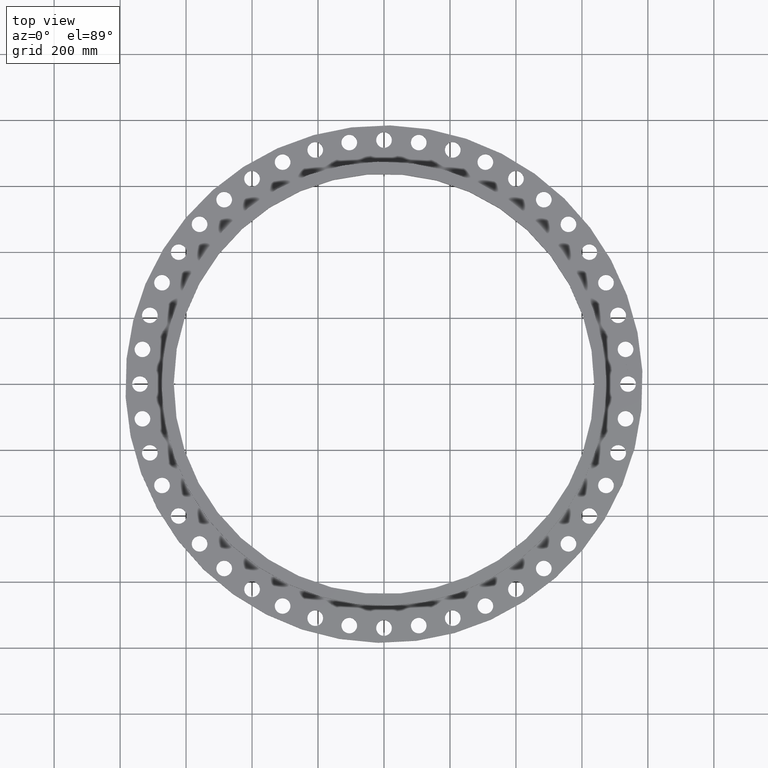
[diagram: clean part render]
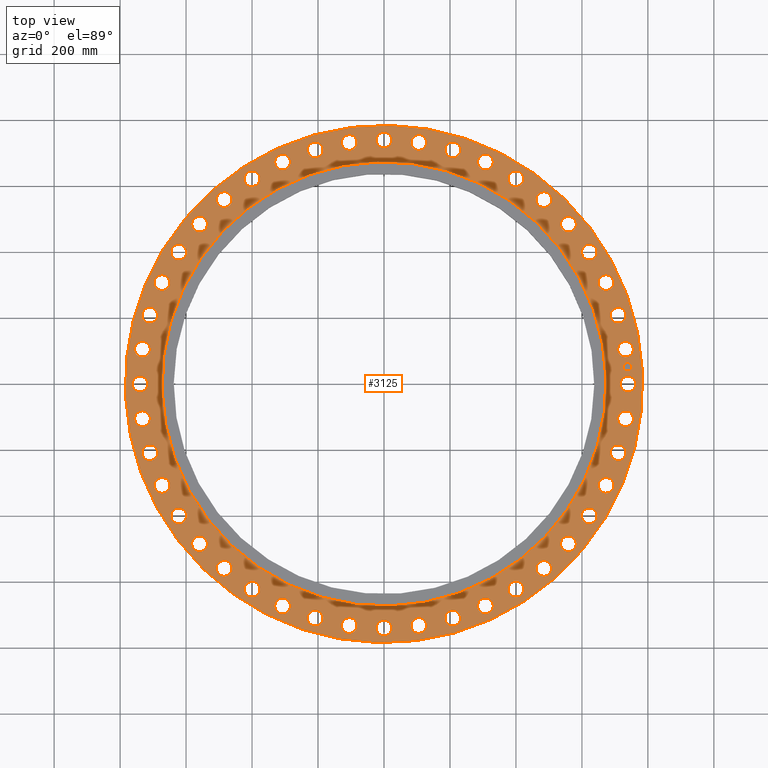
[diagram: same view with one face highlighted and labeled with its STEP entity id]
A machine part, top view. The second image highlights one B-rep face of the part: STEP entity #3125.
In plain terms, the highlighted planar face has unit normal (0, 0, 1).
Its self-contained STEP definition (entity closure, byte-faithful):
#65=AXIS2_PLACEMENT_3D('Circle Axis2P3D',#63,#64,$) ;
#82=AXIS2_PLACEMENT_3D('Circle Axis2P3D',#80,#81,$) ;
#108=AXIS2_PLACEMENT_3D('Circle Axis2P3D',#106,#107,$) ;
#134=AXIS2_PLACEMENT_3D('Circle Axis2P3D',#132,#133,$) ;
#255=AXIS2_PLACEMENT_3D('Circle Axis2P3D',#253,#254,$) ;
#267=AXIS2_PLACEMENT_3D('Circle Axis2P3D',#265,#266,$) ;
#1090=AXIS2_PLACEMENT_3D('Circle Axis2P3D',#1088,#1089,$) ;
#1102=AXIS2_PLACEMENT_3D('Circle Axis2P3D',#1100,#1101,$) ;
#1133=AXIS2_PLACEMENT_3D('Circle Axis2P3D',#1131,#1132,$) ;
#1145=AXIS2_PLACEMENT_3D('Circle Axis2P3D',#1143,#1144,$) ;
#1176=AXIS2_PLACEMENT_3D('Circle Axis2P3D',#1174,#1175,$) ;
#1188=AXIS2_PLACEMENT_3D('Circle Axis2P3D',#1186,#1187,$) ;
#1219=AXIS2_PLACEMENT_3D('Circle Axis2P3D',#1217,#1218,$) ;
#1231=AXIS2_PLACEMENT_3D('Circle Axis2P3D',#1229,#1230,$) ;
#1262=AXIS2_PLACEMENT_3D('Circle Axis2P3D',#1260,#1261,$) ;
#1274=AXIS2_PLACEMENT_3D('Circle Axis2P3D',#1272,#1273,$) ;
#1305=AXIS2_PLACEMENT_3D('Circle Axis2P3D',#1303,#1304,$) ;
#1317=AXIS2_PLACEMENT_3D('Circle Axis2P3D',#1315,#1316,$) ;
#1348=AXIS2_PLACEMENT_3D('Circle Axis2P3D',#1346,#1347,$) ;
#1360=AXIS2_PLACEMENT_3D('Circle Axis2P3D',#1358,#1359,$) ;
#1391=AXIS2_PLACEMENT_3D('Circle Axis2P3D',#1389,#1390,$) ;
#1403=AXIS2_PLACEMENT_3D('Circle Axis2P3D',#1401,#1402,$) ;
#1434=AXIS2_PLACEMENT_3D('Circle Axis2P3D',#1432,#1433,$) ;
#1446=AXIS2_PLACEMENT_3D('Circle Axis2P3D',#1444,#1445,$) ;
#1477=AXIS2_PLACEMENT_3D('Circle Axis2P3D',#1475,#1476,$) ;
#1489=AXIS2_PLACEMENT_3D('Circle Axis2P3D',#1487,#1488,$) ;
#1520=AXIS2_PLACEMENT_3D('Circle Axis2P3D',#1518,#1519,$) ;
#1532=AXIS2_PLACEMENT_3D('Circle Axis2P3D',#1530,#1531,$) ;
#1563=AXIS2_PLACEMENT_3D('Circle Axis2P3D',#1561,#1562,$) ;
#1575=AXIS2_PLACEMENT_3D('Circle Axis2P3D',#1573,#1574,$) ;
#1606=AXIS2_PLACEMENT_3D('Circle Axis2P3D',#1604,#1605,$) ;
#1618=AXIS2_PLACEMENT_3D('Circle Axis2P3D',#1616,#1617,$) ;
#1649=AXIS2_PLACEMENT_3D('Circle Axis2P3D',#1647,#1648,$) ;
#1661=AXIS2_PLACEMENT_3D('Circle Axis2P3D',#1659,#1660,$) ;
#1692=AXIS2_PLACEMENT_3D('Circle Axis2P3D',#1690,#1691,$) ;
#1704=AXIS2_PLACEMENT_3D('Circle Axis2P3D',#1702,#1703,$) ;
#1735=AXIS2_PLACEMENT_3D('Circle Axis2P3D',#1733,#1734,$) ;
#1747=AXIS2_PLACEMENT_3D('Circle Axis2P3D',#1745,#1746,$) ;
#1778=AXIS2_PLACEMENT_3D('Circle Axis2P3D',#1776,#1777,$) ;
#1790=AXIS2_PLACEMENT_3D('Circle Axis2P3D',#1788,#1789,$) ;
#1821=AXIS2_PLACEMENT_3D('Circle Axis2P3D',#1819,#1820,$) ;
#1833=AXIS2_PLACEMENT_3D('Circle Axis2P3D',#1831,#1832,$) ;
#1864=AXIS2_PLACEMENT_3D('Circle Axis2P3D',#1862,#1863,$) ;
#1876=AXIS2_PLACEMENT_3D('Circle Axis2P3D',#1874,#1875,$) ;
#1907=AXIS2_PLACEMENT_3D('Circle Axis2P3D',#1905,#1906,$) ;
#1919=AXIS2_PLACEMENT_3D('Circle Axis2P3D',#1917,#1918,$) ;
#1950=AXIS2_PLACEMENT_3D('Circle Axis2P3D',#1948,#1949,$) ;
#1962=AXIS2_PLACEMENT_3D('Circle Axis2P3D',#1960,#1961,$) ;
#1993=AXIS2_PLACEMENT_3D('Circle Axis2P3D',#1991,#1992,$) ;
#2005=AXIS2_PLACEMENT_3D('Circle Axis2P3D',#2003,#2004,$) ;
#2036=AXIS2_PLACEMENT_3D('Circle Axis2P3D',#2034,#2035,$) ;
#2048=AXIS2_PLACEMENT_3D('Circle Axis2P3D',#2046,#2047,$) ;
#2079=AXIS2_PLACEMENT_3D('Circle Axis2P3D',#2077,#2078,$) ;
#2091=AXIS2_PLACEMENT_3D('Circle Axis2P3D',#2089,#2090,$) ;
#2122=AXIS2_PLACEMENT_3D('Circle Axis2P3D',#2120,#2121,$) ;
#2134=AXIS2_PLACEMENT_3D('Circle Axis2P3D',#2132,#2133,$) ;
#2165=AXIS2_PLACEMENT_3D('Circle Axis2P3D',#2163,#2164,$) ;
#2177=AXIS2_PLACEMENT_3D('Circle Axis2P3D',#2175,#2176,$) ;
#2208=AXIS2_PLACEMENT_3D('Circle Axis2P3D',#2206,#2207,$) ;
#2220=AXIS2_PLACEMENT_3D('Circle Axis2P3D',#2218,#2219,$) ;
#2251=AXIS2_PLACEMENT_3D('Circle Axis2P3D',#2249,#2250,$) ;
#2263=AXIS2_PLACEMENT_3D('Circle Axis2P3D',#2261,#2262,$) ;
#2294=AXIS2_PLACEMENT_3D('Circle Axis2P3D',#2292,#2293,$) ;
#2306=AXIS2_PLACEMENT_3D('Circle Axis2P3D',#2304,#2305,$) ;
#2337=AXIS2_PLACEMENT_3D('Circle Axis2P3D',#2335,#2336,$) ;
#2349=AXIS2_PLACEMENT_3D('Circle Axis2P3D',#2347,#2348,$) ;
#2380=AXIS2_PLACEMENT_3D('Circle Axis2P3D',#2378,#2379,$) ;
#2392=AXIS2_PLACEMENT_3D('Circle Axis2P3D',#2390,#2391,$) ;
#2423=AXIS2_PLACEMENT_3D('Circle Axis2P3D',#2421,#2422,$) ;
#2435=AXIS2_PLACEMENT_3D('Circle Axis2P3D',#2433,#2434,$) ;
#2466=AXIS2_PLACEMENT_3D('Circle Axis2P3D',#2464,#2465,$) ;
#2478=AXIS2_PLACEMENT_3D('Circle Axis2P3D',#2476,#2477,$) ;
#2509=AXIS2_PLACEMENT_3D('Circle Axis2P3D',#2507,#2508,$) ;
#2521=AXIS2_PLACEMENT_3D('Circle Axis2P3D',#2519,#2520,$) ;
#2552=AXIS2_PLACEMENT_3D('Circle Axis2P3D',#2550,#2551,$) ;
#2564=AXIS2_PLACEMENT_3D('Circle Axis2P3D',#2562,#2563,$) ;
#2595=AXIS2_PLACEMENT_3D('Circle Axis2P3D',#2593,#2594,$) ;
#2607=AXIS2_PLACEMENT_3D('Circle Axis2P3D',#2605,#2606,$) ;
#2638=AXIS2_PLACEMENT_3D('Circle Axis2P3D',#2636,#2637,$) ;
#2650=AXIS2_PLACEMENT_3D('Circle Axis2P3D',#2648,#2649,$) ;
#2681=AXIS2_PLACEMENT_3D('Circle Axis2P3D',#2679,#2680,$) ;
#2693=AXIS2_PLACEMENT_3D('Circle Axis2P3D',#2691,#2692,$) ;
#2724=AXIS2_PLACEMENT_3D('Circle Axis2P3D',#2722,#2723,$) ;
#2736=AXIS2_PLACEMENT_3D('Circle Axis2P3D',#2734,#2735,$) ;
#2767=AXIS2_PLACEMENT_3D('Circle Axis2P3D',#2765,#2766,$) ;
#2779=AXIS2_PLACEMENT_3D('Circle Axis2P3D',#2777,#2778,$) ;
#2810=AXIS2_PLACEMENT_3D('Circle Axis2P3D',#2808,#2809,$) ;
#2822=AXIS2_PLACEMENT_3D('Circle Axis2P3D',#2820,#2821,$) ;
#2853=AXIS2_PLACEMENT_3D('Circle Axis2P3D',#2851,#2852,$) ;
#2865=AXIS2_PLACEMENT_3D('Circle Axis2P3D',#2863,#2864,$) ;
#2896=AXIS2_PLACEMENT_3D('Circle Axis2P3D',#2894,#2895,$) ;
#2908=AXIS2_PLACEMENT_3D('Circle Axis2P3D',#2906,#2907,$) ;
#2921=AXIS2_PLACEMENT_3D('Plane Axis2P3D',#2918,#2919,#2920) ;
#3109=AXIS2_PLACEMENT_3D('Circle Axis2P3D',#3107,#3108,$) ;
#3118=AXIS2_PLACEMENT_3D('Circle Axis2P3D',#3116,#3117,$) ;
#46=CARTESIAN_POINT('Vertex',(28.3022663483,0.449461442443,1.37500000001)) ;
#60=CARTESIAN_POINT('Vertex',(29.9477336519,-0.449461442443,1.37500000001)) ;
#63=CARTESIAN_POINT('Axis2P3D Location',(29.1250000001,0.,1.37500000001)) ;
#80=CARTESIAN_POINT('Axis2P3D Location',(29.1250000001,0.,1.37500000001)) ;
#103=CARTESIAN_POINT('Vertex',(27.0953615985,14.8022635045,1.37500000001)) ;
#106=CARTESIAN_POINT('Axis2P3D Location',(0.,0.,1.37500000001)) ;
#110=CARTESIAN_POINT('Vertex',(-27.0953615985,-14.8022635045,1.37500000001)) ;
#132=CARTESIAN_POINT('Axis2P3D Location',(0.,0.,1.37500000001)) ;
#243=CARTESIAN_POINT('Vertex',(23.2559378902,12.7047767731,1.37500000001)) ;
#250=CARTESIAN_POINT('Vertex',(-23.2559378902,-12.7047767731,1.37500000001)) ;
#253=CARTESIAN_POINT('Axis2P3D Location',(0.,0.,1.37500000001)) ;
#265=CARTESIAN_POINT('Axis2P3D Location',(0.,0.,1.37500000001)) ;
#1078=CARTESIAN_POINT('Vertex',(27.9502250529,4.47271903116,1.37500000001)) ;
#1085=CARTESIAN_POINT('Vertex',(29.7068739369,3.81712029829,1.37500000001)) ;
#1088=CARTESIAN_POINT('Axis2P3D Location',(28.8285494949,4.14491966473,1.37500000001)) ;
#1100=CARTESIAN_POINT('Axis2P3D Location',(28.8285494949,4.14491966473,1.37500000001)) ;
#1121=CARTESIAN_POINT('Vertex',(27.0291977772,8.40492495866,1.37500000001)) ;
#1128=CARTESIAN_POINT('Vertex',(28.861267936,8.00599647742,1.37500000001)) ;
#1131=CARTESIAN_POINT('Axis2P3D Location',(27.9452328566,8.20546071804,1.37500000001)) ;
#1143=CARTESIAN_POINT('Axis2P3D Location',(27.9452328566,8.20546071804,1.37500000001)) ;
#1164=CARTESIAN_POINT('Vertex',(25.5579339805,12.1660308518,1.37500000001)) ;
#1171=CARTESIAN_POINT('Vertex',(27.4281297491,12.0318936557,1.37500000001)) ;
#1174=CARTESIAN_POINT('Axis2P3D Location',(26.4930318648,12.0989622537,1.37500000001)) ;
#1186=CARTESIAN_POINT('Axis2P3D Location',(26.4930318648,12.0989622537,1.37500000001)) ;
#1207=CARTESIAN_POINT('Vertex',(23.566384351,15.6794714407,1.37500000001)) ;
#1214=CARTESIAN_POINT('Vertex',(25.4366339366,15.8128561762,1.37500000001)) ;
#1217=CARTESIAN_POINT('Axis2P3D Location',(24.5015091438,15.7461638085,1.37500000001)) ;
#1229=CARTESIAN_POINT('Axis2P3D Location',(24.5015091438,15.7461638085,1.37500000001)) ;
#1250=CARTESIAN_POINT('Vertex',(21.0950910959,18.873723207,1.37500000001)) ;
#1257=CARTESIAN_POINT('Vertex',(22.9273216104,19.2719145455,1.37500000001)) ;
#1260=CARTESIAN_POINT('Axis2P3D Location',(22.0112063532,19.0728188762,1.37500000001)) ;
#1272=CARTESIAN_POINT('Axis2P3D Location',(22.0112063532,19.0728188762,1.37500000001)) ;
#1293=CARTESIAN_POINT('Vertex',(18.1943626194,21.6837603961,1.37500000001)) ;
#1300=CARTESIAN_POINT('Vertex',(19.9512751331,22.3386523102,1.37500000001)) ;
#1303=CARTESIAN_POINT('Axis2P3D Location',(19.0728188762,22.0112063532,1.37500000001)) ;
#1315=CARTESIAN_POINT('Axis2P3D Location',(19.0728188762,22.0112063532,1.37500000001)) ;
#1336=CARTESIAN_POINT('Vertex',(14.9232493881,24.0523787543,1.37500000001)) ;
#1343=CARTESIAN_POINT('Vertex',(16.5690782288,24.9506395333,1.37500000001)) ;
#1346=CARTESIAN_POINT('Axis2P3D Location',(15.7461638085,24.5015091438,1.37500000001)) ;
#1358=CARTESIAN_POINT('Axis2P3D Location',(15.7461638085,24.5015091438,1.37500000001)) ;
#1379=CARTESIAN_POINT('Vertex',(11.3483418344,25.9313600425,1.37500000001)) ;
#1386=CARTESIAN_POINT('Vertex',(12.8495826731,27.0547036872,1.37500000001)) ;
#1389=CARTESIAN_POINT('Axis2P3D Location',(12.0989622537,26.4930318648,1.37500000001)) ;
#1401=CARTESIAN_POINT('Axis2P3D Location',(12.0989622537,26.4930318648,1.37500000001)) ;
#1422=CARTESIAN_POINT('Vertex',(7.54241476679,27.28245362,1.37500000001)) ;
#1429=CARTESIAN_POINT('Vertex',(8.86850666929,28.6080120933,1.37500000001)) ;
#1432=CARTESIAN_POINT('Axis2P3D Location',(8.20546071804,27.9452328566,1.37500000001)) ;
#1444=CARTESIAN_POINT('Axis2P3D Location',(8.20546071804,27.9452328566,1.37500000001)) ;
#1465=CARTESIAN_POINT('Vertex',(3.5829458851,28.0781551179,1.37500000001)) ;
#1472=CARTESIAN_POINT('Vertex',(4.70689344435,29.5789438719,1.37500000001)) ;
#1475=CARTESIAN_POINT('Axis2P3D Location',(4.14491966473,28.8285494949,1.37500000001)) ;
#1487=CARTESIAN_POINT('Axis2P3D Location',(4.14491966473,28.8285494949,1.37500000001)) ;
#1508=CARTESIAN_POINT('Vertex',(-0.449461442443,28.3022663483,1.37500000001)) ;
#1515=CARTESIAN_POINT('Vertex',(0.449461442443,29.9477336519,1.37500000001)) ;
#1518=CARTESIAN_POINT('Axis2P3D Location',(-2.69246785155E-015,29.1250000001,1.37500000001)) ;
#1530=CARTESIAN_POINT('Axis2P3D Location',(-2.69246785155E-015,29.1250000001,1.37500000001)) ;
#1551=CARTESIAN_POINT('Vertex',(-4.47271903116,27.9502250529,1.37500000001)) ;
#1558=CARTESIAN_POINT('Vertex',(-3.81712029829,29.7068739369,1.37500000001)) ;
#1561=CARTESIAN_POINT('Axis2P3D Location',(-4.14491966473,28.8285494949,1.37500000001)) ;
#1573=CARTESIAN_POINT('Axis2P3D Location',(-4.14491966473,28.8285494949,1.37500000001)) ;
#1594=CARTESIAN_POINT('Vertex',(-8.40492495866,27.0291977772,1.37500000001)) ;
#1601=CARTESIAN_POINT('Vertex',(-8.00599647742,28.861267936,1.37500000001)) ;
#1604=CARTESIAN_POINT('Axis2P3D Location',(-8.20546071804,27.9452328566,1.37500000001)) ;
#1616=CARTESIAN_POINT('Axis2P3D Location',(-8.20546071804,27.9452328566,1.37500000001)) ;
#1637=CARTESIAN_POINT('Vertex',(-12.1660308518,25.5579339805,1.37500000001)) ;
#1644=CARTESIAN_POINT('Vertex',(-12.0318936557,27.4281297491,1.37500000001)) ;
#1647=CARTESIAN_POINT('Axis2P3D Location',(-12.0989622537,26.4930318648,1.37500000001)) ;
#1659=CARTESIAN_POINT('Axis2P3D Location',(-12.0989622537,26.4930318648,1.37500000001)) ;
#1680=CARTESIAN_POINT('Vertex',(-15.6794714407,23.566384351,1.37500000001)) ;
#1687=CARTESIAN_POINT('Vertex',(-15.8128561762,25.4366339366,1.37500000001)) ;
#1690=CARTESIAN_POINT('Axis2P3D Location',(-15.7461638085,24.5015091438,1.37500000001)) ;
#1702=CARTESIAN_POINT('Axis2P3D Location',(-15.7461638085,24.5015091438,1.37500000001)) ;
#1723=CARTESIAN_POINT('Vertex',(-18.873723207,21.0950910959,1.37500000001)) ;
#1730=CARTESIAN_POINT('Vertex',(-19.2719145455,22.9273216104,1.37500000001)) ;
#1733=CARTESIAN_POINT('Axis2P3D Location',(-19.0728188762,22.0112063532,1.37500000001)) ;
#1745=CARTESIAN_POINT('Axis2P3D Location',(-19.0728188762,22.0112063532,1.37500000001)) ;
#1766=CARTESIAN_POINT('Vertex',(-21.6837603961,18.1943626194,1.37500000001)) ;
#1773=CARTESIAN_POINT('Vertex',(-22.3386523102,19.9512751331,1.37500000001)) ;
#1776=CARTESIAN_POINT('Axis2P3D Location',(-22.0112063532,19.0728188762,1.37500000001)) ;
#1788=CARTESIAN_POINT('Axis2P3D Location',(-22.0112063532,19.0728188762,1.37500000001)) ;
#1809=CARTESIAN_POINT('Vertex',(-24.0523787543,14.9232493881,1.37500000001)) ;
#1816=CARTESIAN_POINT('Vertex',(-24.9506395333,16.5690782288,1.37500000001)) ;
#1819=CARTESIAN_POINT('Axis2P3D Location',(-24.5015091438,15.7461638085,1.37500000001)) ;
#1831=CARTESIAN_POINT('Axis2P3D Location',(-24.5015091438,15.7461638085,1.37500000001)) ;
#1852=CARTESIAN_POINT('Vertex',(-25.9313600425,11.3483418344,1.37500000001)) ;
#1859=CARTESIAN_POINT('Vertex',(-27.0547036872,12.8495826731,1.37500000001)) ;
#1862=CARTESIAN_POINT('Axis2P3D Location',(-26.4930318648,12.0989622537,1.37500000001)) ;
#1874=CARTESIAN_POINT('Axis2P3D Location',(-26.4930318648,12.0989622537,1.37500000001)) ;
#1895=CARTESIAN_POINT('Vertex',(-27.28245362,7.54241476679,1.37500000001)) ;
#1902=CARTESIAN_POINT('Vertex',(-28.6080120933,8.86850666929,1.37500000001)) ;
#1905=CARTESIAN_POINT('Axis2P3D Location',(-27.9452328566,8.20546071804,1.37500000001)) ;
#1917=CARTESIAN_POINT('Axis2P3D Location',(-27.9452328566,8.20546071804,1.37500000001)) ;
#1938=CARTESIAN_POINT('Vertex',(-28.0781551179,3.5829458851,1.37500000001)) ;
#1945=CARTESIAN_POINT('Vertex',(-29.5789438719,4.70689344435,1.37500000001)) ;
#1948=CARTESIAN_POINT('Axis2P3D Location',(-28.8285494949,4.14491966473,1.37500000001)) ;
#1960=CARTESIAN_POINT('Axis2P3D Location',(-28.8285494949,4.14491966473,1.37500000001)) ;
#1981=CARTESIAN_POINT('Vertex',(-28.3022663483,-0.449461442443,1.37500000001)) ;
#1988=CARTESIAN_POINT('Vertex',(-29.9477336519,0.449461442443,1.37500000001)) ;
#1991=CARTESIAN_POINT('Axis2P3D Location',(-29.1250000001,3.56678380253E-015,1.37500000001)) ;
#2003=CARTESIAN_POINT('Axis2P3D Location',(-29.1250000001,3.56678380253E-015,1.37500000001)) ;
#2024=CARTESIAN_POINT('Vertex',(-27.9502250529,-4.47271903116,1.37500000001)) ;
#2031=CARTESIAN_POINT('Vertex',(-29.7068739369,-3.81712029829,1.37500000001)) ;
#2034=CARTESIAN_POINT('Axis2P3D Location',(-28.8285494949,-4.14491966473,1.37500000001)) ;
#2046=CARTESIAN_POINT('Axis2P3D Location',(-28.8285494949,-4.14491966473,1.37500000001)) ;
#2067=CARTESIAN_POINT('Vertex',(-27.0291977772,-8.40492495866,1.37500000001)) ;
#2074=CARTESIAN_POINT('Vertex',(-28.861267936,-8.00599647742,1.37500000001)) ;
#2077=CARTESIAN_POINT('Axis2P3D Location',(-27.9452328566,-8.20546071804,1.37500000001)) ;
#2089=CARTESIAN_POINT('Axis2P3D Location',(-27.9452328566,-8.20546071804,1.37500000001)) ;
#2110=CARTESIAN_POINT('Vertex',(-25.5579339805,-12.1660308518,1.37500000001)) ;
#2117=CARTESIAN_POINT('Vertex',(-27.4281297491,-12.0318936557,1.37500000001)) ;
#2120=CARTESIAN_POINT('Axis2P3D Location',(-26.4930318648,-12.0989622537,1.37500000001)) ;
#2132=CARTESIAN_POINT('Axis2P3D Location',(-26.4930318648,-12.0989622537,1.37500000001)) ;
#2153=CARTESIAN_POINT('Vertex',(-23.566384351,-15.6794714407,1.37500000001)) ;
#2160=CARTESIAN_POINT('Vertex',(-25.4366339366,-15.8128561762,1.37500000001)) ;
#2163=CARTESIAN_POINT('Axis2P3D Location',(-24.5015091438,-15.7461638085,1.37500000001)) ;
#2175=CARTESIAN_POINT('Axis2P3D Location',(-24.5015091438,-15.7461638085,1.37500000001)) ;
#2196=CARTESIAN_POINT('Vertex',(-21.0950910959,-18.873723207,1.37500000001)) ;
#2203=CARTESIAN_POINT('Vertex',(-22.9273216104,-19.2719145455,1.37500000001)) ;
#2206=CARTESIAN_POINT('Axis2P3D Location',(-22.0112063532,-19.0728188762,1.37500000001)) ;
#2218=CARTESIAN_POINT('Axis2P3D Location',(-22.0112063532,-19.0728188762,1.37500000001)) ;
#2239=CARTESIAN_POINT('Vertex',(-18.1943626194,-21.6837603961,1.37500000001)) ;
#2246=CARTESIAN_POINT('Vertex',(-19.9512751331,-22.3386523102,1.37500000001)) ;
#2249=CARTESIAN_POINT('Axis2P3D Location',(-19.0728188762,-22.0112063532,1.37500000001)) ;
#2261=CARTESIAN_POINT('Axis2P3D Location',(-19.0728188762,-22.0112063532,1.37500000001)) ;
#2282=CARTESIAN_POINT('Vertex',(-14.9232493881,-24.0523787543,1.37500000001)) ;
#2289=CARTESIAN_POINT('Vertex',(-16.5690782288,-24.9506395333,1.37500000001)) ;
#2292=CARTESIAN_POINT('Axis2P3D Location',(-15.7461638085,-24.5015091438,1.37500000001)) ;
#2304=CARTESIAN_POINT('Axis2P3D Location',(-15.7461638085,-24.5015091438,1.37500000001)) ;
#2325=CARTESIAN_POINT('Vertex',(-11.3483418344,-25.9313600425,1.37500000001)) ;
#2332=CARTESIAN_POINT('Vertex',(-12.8495826731,-27.0547036872,1.37500000001)) ;
#2335=CARTESIAN_POINT('Axis2P3D Location',(-12.0989622537,-26.4930318648,1.37500000001)) ;
#2347=CARTESIAN_POINT('Axis2P3D Location',(-12.0989622537,-26.4930318648,1.37500000001)) ;
#2368=CARTESIAN_POINT('Vertex',(-7.54241476679,-27.28245362,1.37500000001)) ;
#2375=CARTESIAN_POINT('Vertex',(-8.86850666929,-28.6080120933,1.37500000001)) ;
#2378=CARTESIAN_POINT('Axis2P3D Location',(-8.20546071804,-27.9452328566,1.37500000001)) ;
#2390=CARTESIAN_POINT('Axis2P3D Location',(-8.20546071804,-27.9452328566,1.37500000001)) ;
#2411=CARTESIAN_POINT('Vertex',(-3.5829458851,-28.0781551179,1.37500000001)) ;
#2418=CARTESIAN_POINT('Vertex',(-4.70689344435,-29.5789438719,1.37500000001)) ;
#2421=CARTESIAN_POINT('Axis2P3D Location',(-4.14491966473,-28.8285494949,1.37500000001)) ;
#2433=CARTESIAN_POINT('Axis2P3D Location',(-4.14491966473,-28.8285494949,1.37500000001)) ;
#2454=CARTESIAN_POINT('Vertex',(0.449461442443,-28.3022663483,1.37500000001)) ;
#2461=CARTESIAN_POINT('Vertex',(-0.449461442443,-29.9477336519,1.37500000001)) ;
#2464=CARTESIAN_POINT('Axis2P3D Location',(-5.3501757038E-015,-29.1250000001,1.37500000001)) ;
#2476=CARTESIAN_POINT('Axis2P3D Location',(-5.3501757038E-015,-29.1250000001,1.37500000001)) ;
#2497=CARTESIAN_POINT('Vertex',(4.47271903116,-27.9502250529,1.37500000001)) ;
#2504=CARTESIAN_POINT('Vertex',(3.81712029829,-29.7068739369,1.37500000001)) ;
#2507=CARTESIAN_POINT('Axis2P3D Location',(4.14491966473,-28.8285494949,1.37500000001)) ;
#2519=CARTESIAN_POINT('Axis2P3D Location',(4.14491966473,-28.8285494949,1.37500000001)) ;
#2540=CARTESIAN_POINT('Vertex',(8.40492495866,-27.0291977772,1.37500000001)) ;
#2547=CARTESIAN_POINT('Vertex',(8.00599647742,-28.861267936,1.37500000001)) ;
#2550=CARTESIAN_POINT('Axis2P3D Location',(8.20546071804,-27.9452328566,1.37500000001)) ;
#2562=CARTESIAN_POINT('Axis2P3D Location',(8.20546071804,-27.9452328566,1.37500000001)) ;
#2583=CARTESIAN_POINT('Vertex',(12.1660308518,-25.5579339805,1.37500000001)) ;
#2590=CARTESIAN_POINT('Vertex',(12.0318936557,-27.4281297491,1.37500000001)) ;
#2593=CARTESIAN_POINT('Axis2P3D Location',(12.0989622537,-26.4930318648,1.37500000001)) ;
#2605=CARTESIAN_POINT('Axis2P3D Location',(12.0989622537,-26.4930318648,1.37500000001)) ;
#2626=CARTESIAN_POINT('Vertex',(15.6794714407,-23.566384351,1.37500000001)) ;
#2633=CARTESIAN_POINT('Vertex',(15.8128561762,-25.4366339366,1.37500000001)) ;
#2636=CARTESIAN_POINT('Axis2P3D Location',(15.7461638085,-24.5015091438,1.37500000001)) ;
#2648=CARTESIAN_POINT('Axis2P3D Location',(15.7461638085,-24.5015091438,1.37500000001)) ;
#2669=CARTESIAN_POINT('Vertex',(18.873723207,-21.0950910959,1.37500000001)) ;
#2676=CARTESIAN_POINT('Vertex',(19.2719145455,-22.9273216104,1.37500000001)) ;
#2679=CARTESIAN_POINT('Axis2P3D Location',(19.0728188762,-22.0112063532,1.37500000001)) ;
#2691=CARTESIAN_POINT('Axis2P3D Location',(19.0728188762,-22.0112063532,1.37500000001)) ;
#2712=CARTESIAN_POINT('Vertex',(21.6837603961,-18.1943626194,1.37500000001)) ;
#2719=CARTESIAN_POINT('Vertex',(22.3386523102,-19.9512751331,1.37500000001)) ;
#2722=CARTESIAN_POINT('Axis2P3D Location',(22.0112063532,-19.0728188762,1.37500000001)) ;
#2734=CARTESIAN_POINT('Axis2P3D Location',(22.0112063532,-19.0728188762,1.37500000001)) ;
#2755=CARTESIAN_POINT('Vertex',(24.0523787543,-14.9232493881,1.37500000001)) ;
#2762=CARTESIAN_POINT('Vertex',(24.9506395333,-16.5690782288,1.37500000001)) ;
#2765=CARTESIAN_POINT('Axis2P3D Location',(24.5015091438,-15.7461638085,1.37500000001)) ;
#2777=CARTESIAN_POINT('Axis2P3D Location',(24.5015091438,-15.7461638085,1.37500000001)) ;
#2798=CARTESIAN_POINT('Vertex',(25.9313600425,-11.3483418344,1.37500000001)) ;
#2805=CARTESIAN_POINT('Vertex',(27.0547036872,-12.8495826731,1.37500000001)) ;
#2808=CARTESIAN_POINT('Axis2P3D Location',(26.4930318648,-12.0989622537,1.37500000001)) ;
#2820=CARTESIAN_POINT('Axis2P3D Location',(26.4930318648,-12.0989622537,1.37500000001)) ;
#2841=CARTESIAN_POINT('Vertex',(27.28245362,-7.54241476679,1.37500000001)) ;
#2848=CARTESIAN_POINT('Vertex',(28.6080120933,-8.86850666929,1.37500000001)) ;
#2851=CARTESIAN_POINT('Axis2P3D Location',(27.9452328566,-8.20546071804,1.37500000001)) ;
#2863=CARTESIAN_POINT('Axis2P3D Location',(27.9452328566,-8.20546071804,1.37500000001)) ;
#2884=CARTESIAN_POINT('Vertex',(28.0781551179,-3.5829458851,1.37500000001)) ;
#2891=CARTESIAN_POINT('Vertex',(29.5789438719,-4.70689344435,1.37500000001)) ;
#2894=CARTESIAN_POINT('Axis2P3D Location',(28.8285494949,-4.14491966473,1.37500000001)) ;
#2906=CARTESIAN_POINT('Axis2P3D Location',(28.8285494949,-4.14491966473,1.37500000001)) ;
#2918=CARTESIAN_POINT('Axis2P3D Location',(30.8750000001,0.,1.37500000001)) ;
#3107=CARTESIAN_POINT('Axis2P3D Location',(29.0507928381,2.07775371069,1.37500000001)) ;
#3111=CARTESIAN_POINT('Vertex',(29.0151232469,2.57647976301,1.37500000001)) ;
#3113=CARTESIAN_POINT('Vertex',(29.0864624294,1.57902765837,1.37500000001)) ;
#3116=CARTESIAN_POINT('Axis2P3D Location',(29.0507928381,2.07775371069,1.37500000001)) ;
#64=DIRECTION('Axis2P3D Direction',(0.,-0.,-0.0393700787402)) ;
#81=DIRECTION('Axis2P3D Direction',(0.,-0.,-0.0393700787402)) ;
#107=DIRECTION('Axis2P3D Direction',(0.,0.,0.0393700787402)) ;
#133=DIRECTION('Axis2P3D Direction',(0.,0.,0.0393700787402)) ;
#254=DIRECTION('Axis2P3D Direction',(0.,0.,0.0393700787402)) ;
#266=DIRECTION('Axis2P3D Direction',(0.,0.,0.0393700787402)) ;
#1089=DIRECTION('Axis2P3D Direction',(0.,0.,-0.0393700787402)) ;
#1101=DIRECTION('Axis2P3D Direction',(0.,0.,-0.0393700787402)) ;
#1132=DIRECTION('Axis2P3D Direction',(0.,0.,-0.0393700787402)) ;
#1144=DIRECTION('Axis2P3D Direction',(0.,0.,-0.0393700787402)) ;
#1175=DIRECTION('Axis2P3D Direction',(0.,0.,-0.0393700787402)) ;
#1187=DIRECTION('Axis2P3D Direction',(0.,0.,-0.0393700787402)) ;
#1218=DIRECTION('Axis2P3D Direction',(0.,0.,-0.0393700787402)) ;
#1230=DIRECTION('Axis2P3D Direction',(0.,0.,-0.0393700787402)) ;
#1261=DIRECTION('Axis2P3D Direction',(0.,0.,-0.0393700787402)) ;
#1273=DIRECTION('Axis2P3D Direction',(0.,0.,-0.0393700787402)) ;
#1304=DIRECTION('Axis2P3D Direction',(0.,0.,-0.0393700787402)) ;
#1316=DIRECTION('Axis2P3D Direction',(0.,0.,-0.0393700787402)) ;
#1347=DIRECTION('Axis2P3D Direction',(0.,0.,-0.0393700787402)) ;
#1359=DIRECTION('Axis2P3D Direction',(0.,0.,-0.0393700787402)) ;
#1390=DIRECTION('Axis2P3D Direction',(0.,0.,-0.0393700787402)) ;
#1402=DIRECTION('Axis2P3D Direction',(0.,0.,-0.0393700787402)) ;
#1433=DIRECTION('Axis2P3D Direction',(0.,0.,-0.0393700787402)) ;
#1445=DIRECTION('Axis2P3D Direction',(0.,0.,-0.0393700787402)) ;
#1476=DIRECTION('Axis2P3D Direction',(0.,0.,-0.0393700787402)) ;
#1488=DIRECTION('Axis2P3D Direction',(0.,0.,-0.0393700787402)) ;
#1519=DIRECTION('Axis2P3D Direction',(0.,0.,-0.0393700787402)) ;
#1531=DIRECTION('Axis2P3D Direction',(0.,0.,-0.0393700787402)) ;
#1562=DIRECTION('Axis2P3D Direction',(0.,0.,-0.0393700787402)) ;
#1574=DIRECTION('Axis2P3D Direction',(0.,0.,-0.0393700787402)) ;
#1605=DIRECTION('Axis2P3D Direction',(0.,0.,-0.0393700787402)) ;
#1617=DIRECTION('Axis2P3D Direction',(0.,0.,-0.0393700787402)) ;
#1648=DIRECTION('Axis2P3D Direction',(0.,0.,-0.0393700787402)) ;
#1660=DIRECTION('Axis2P3D Direction',(0.,0.,-0.0393700787402)) ;
#1691=DIRECTION('Axis2P3D Direction',(0.,0.,-0.0393700787402)) ;
#1703=DIRECTION('Axis2P3D Direction',(0.,0.,-0.0393700787402)) ;
#1734=DIRECTION('Axis2P3D Direction',(0.,0.,-0.0393700787402)) ;
#1746=DIRECTION('Axis2P3D Direction',(0.,0.,-0.0393700787402)) ;
#1777=DIRECTION('Axis2P3D Direction',(0.,0.,-0.0393700787402)) ;
#1789=DIRECTION('Axis2P3D Direction',(0.,0.,-0.0393700787402)) ;
#1820=DIRECTION('Axis2P3D Direction',(0.,0.,-0.0393700787402)) ;
#1832=DIRECTION('Axis2P3D Direction',(0.,0.,-0.0393700787402)) ;
#1863=DIRECTION('Axis2P3D Direction',(0.,0.,-0.0393700787402)) ;
#1875=DIRECTION('Axis2P3D Direction',(0.,0.,-0.0393700787402)) ;
#1906=DIRECTION('Axis2P3D Direction',(0.,0.,-0.0393700787402)) ;
#1918=DIRECTION('Axis2P3D Direction',(0.,0.,-0.0393700787402)) ;
#1949=DIRECTION('Axis2P3D Direction',(0.,0.,-0.0393700787402)) ;
#1961=DIRECTION('Axis2P3D Direction',(0.,0.,-0.0393700787402)) ;
#1992=DIRECTION('Axis2P3D Direction',(0.,0.,-0.0393700787402)) ;
#2004=DIRECTION('Axis2P3D Direction',(0.,0.,-0.0393700787402)) ;
#2035=DIRECTION('Axis2P3D Direction',(-0.,0.,-0.0393700787402)) ;
#2047=DIRECTION('Axis2P3D Direction',(-0.,0.,-0.0393700787402)) ;
#2078=DIRECTION('Axis2P3D Direction',(-0.,0.,-0.0393700787402)) ;
#2090=DIRECTION('Axis2P3D Direction',(-0.,0.,-0.0393700787402)) ;
#2121=DIRECTION('Axis2P3D Direction',(-0.,0.,-0.0393700787402)) ;
#2133=DIRECTION('Axis2P3D Direction',(-0.,0.,-0.0393700787402)) ;
#2164=DIRECTION('Axis2P3D Direction',(-0.,0.,-0.0393700787402)) ;
#2176=DIRECTION('Axis2P3D Direction',(-0.,0.,-0.0393700787402)) ;
#2207=DIRECTION('Axis2P3D Direction',(-0.,0.,-0.0393700787402)) ;
#2219=DIRECTION('Axis2P3D Direction',(-0.,0.,-0.0393700787402)) ;
#2250=DIRECTION('Axis2P3D Direction',(-0.,0.,-0.0393700787402)) ;
#2262=DIRECTION('Axis2P3D Direction',(-0.,0.,-0.0393700787402)) ;
#2293=DIRECTION('Axis2P3D Direction',(-0.,0.,-0.0393700787402)) ;
#2305=DIRECTION('Axis2P3D Direction',(-0.,0.,-0.0393700787402)) ;
#2336=DIRECTION('Axis2P3D Direction',(-0.,0.,-0.0393700787402)) ;
#2348=DIRECTION('Axis2P3D Direction',(-0.,0.,-0.0393700787402)) ;
#2379=DIRECTION('Axis2P3D Direction',(-0.,0.,-0.0393700787402)) ;
#2391=DIRECTION('Axis2P3D Direction',(-0.,0.,-0.0393700787402)) ;
#2422=DIRECTION('Axis2P3D Direction',(-0.,0.,-0.0393700787402)) ;
#2434=DIRECTION('Axis2P3D Direction',(-0.,0.,-0.0393700787402)) ;
#2465=DIRECTION('Axis2P3D Direction',(-0.,0.,-0.0393700787402)) ;
#2477=DIRECTION('Axis2P3D Direction',(-0.,0.,-0.0393700787402)) ;
#2508=DIRECTION('Axis2P3D Direction',(0.,-0.,-0.0393700787402)) ;
#2520=DIRECTION('Axis2P3D Direction',(0.,-0.,-0.0393700787402)) ;
#2551=DIRECTION('Axis2P3D Direction',(0.,-0.,-0.0393700787402)) ;
#2563=DIRECTION('Axis2P3D Direction',(0.,-0.,-0.0393700787402)) ;
#2594=DIRECTION('Axis2P3D Direction',(0.,-0.,-0.0393700787402)) ;
#2606=DIRECTION('Axis2P3D Direction',(0.,-0.,-0.0393700787402)) ;
#2637=DIRECTION('Axis2P3D Direction',(0.,-0.,-0.0393700787402)) ;
#2649=DIRECTION('Axis2P3D Direction',(0.,-0.,-0.0393700787402)) ;
#2680=DIRECTION('Axis2P3D Direction',(0.,-0.,-0.0393700787402)) ;
#2692=DIRECTION('Axis2P3D Direction',(0.,-0.,-0.0393700787402)) ;
#2723=DIRECTION('Axis2P3D Direction',(0.,-0.,-0.0393700787402)) ;
#2735=DIRECTION('Axis2P3D Direction',(0.,-0.,-0.0393700787402)) ;
#2766=DIRECTION('Axis2P3D Direction',(0.,-0.,-0.0393700787402)) ;
#2778=DIRECTION('Axis2P3D Direction',(0.,-0.,-0.0393700787402)) ;
#2809=DIRECTION('Axis2P3D Direction',(0.,-0.,-0.0393700787402)) ;
#2821=DIRECTION('Axis2P3D Direction',(0.,-0.,-0.0393700787402)) ;
#2852=DIRECTION('Axis2P3D Direction',(0.,-0.,-0.0393700787402)) ;
#2864=DIRECTION('Axis2P3D Direction',(0.,-0.,-0.0393700787402)) ;
#2895=DIRECTION('Axis2P3D Direction',(0.,-0.,-0.0393700787402)) ;
#2907=DIRECTION('Axis2P3D Direction',(0.,-0.,-0.0393700787402)) ;
#2919=DIRECTION('Axis2P3D Direction',(0.,0.,0.0393700787402)) ;
#2920=DIRECTION('Axis2P3D XDirection',(0.0393700787402,0.,0.)) ;
#3108=DIRECTION('Axis2P3D Direction',(0.,0.,0.0393700787402)) ;
#3117=DIRECTION('Axis2P3D Direction',(0.,0.,0.0393700787402)) ;
#2924=ORIENTED_EDGE('',*,*,#112,.T.) ;
#2925=ORIENTED_EDGE('',*,*,#136,.T.) ;
#2928=ORIENTED_EDGE('',*,*,#84,.F.) ;
#2929=ORIENTED_EDGE('',*,*,#67,.F.) ;
#2932=ORIENTED_EDGE('',*,*,#269,.F.) ;
#2933=ORIENTED_EDGE('',*,*,#257,.F.) ;
#2936=ORIENTED_EDGE('',*,*,#1092,.F.) ;
#2937=ORIENTED_EDGE('',*,*,#1104,.F.) ;
#2940=ORIENTED_EDGE('',*,*,#1135,.F.) ;
#2941=ORIENTED_EDGE('',*,*,#1147,.F.) ;
#2944=ORIENTED_EDGE('',*,*,#1178,.F.) ;
#2945=ORIENTED_EDGE('',*,*,#1190,.F.) ;
#2948=ORIENTED_EDGE('',*,*,#1221,.F.) ;
#2949=ORIENTED_EDGE('',*,*,#1233,.F.) ;
#2952=ORIENTED_EDGE('',*,*,#1264,.F.) ;
#2953=ORIENTED_EDGE('',*,*,#1276,.F.) ;
#2956=ORIENTED_EDGE('',*,*,#1307,.F.) ;
#2957=ORIENTED_EDGE('',*,*,#1319,.F.) ;
#2960=ORIENTED_EDGE('',*,*,#1350,.F.) ;
#2961=ORIENTED_EDGE('',*,*,#1362,.F.) ;
#2964=ORIENTED_EDGE('',*,*,#1393,.F.) ;
#2965=ORIENTED_EDGE('',*,*,#1405,.F.) ;
#2968=ORIENTED_EDGE('',*,*,#1436,.F.) ;
#2969=ORIENTED_EDGE('',*,*,#1448,.F.) ;
#2972=ORIENTED_EDGE('',*,*,#1479,.F.) ;
#2973=ORIENTED_EDGE('',*,*,#1491,.F.) ;
#2976=ORIENTED_EDGE('',*,*,#1522,.F.) ;
#2977=ORIENTED_EDGE('',*,*,#1534,.F.) ;
#2980=ORIENTED_EDGE('',*,*,#1565,.F.) ;
#2981=ORIENTED_EDGE('',*,*,#1577,.F.) ;
#2984=ORIENTED_EDGE('',*,*,#1608,.F.) ;
#2985=ORIENTED_EDGE('',*,*,#1620,.F.) ;
#2988=ORIENTED_EDGE('',*,*,#1651,.F.) ;
#2989=ORIENTED_EDGE('',*,*,#1663,.F.) ;
#2992=ORIENTED_EDGE('',*,*,#1694,.F.) ;
#2993=ORIENTED_EDGE('',*,*,#1706,.F.) ;
#2996=ORIENTED_EDGE('',*,*,#1737,.F.) ;
#2997=ORIENTED_EDGE('',*,*,#1749,.F.) ;
#3000=ORIENTED_EDGE('',*,*,#1780,.F.) ;
#3001=ORIENTED_EDGE('',*,*,#1792,.F.) ;
#3004=ORIENTED_EDGE('',*,*,#1823,.F.) ;
#3005=ORIENTED_EDGE('',*,*,#1835,.F.) ;
#3008=ORIENTED_EDGE('',*,*,#1866,.F.) ;
#3009=ORIENTED_EDGE('',*,*,#1878,.F.) ;
#3012=ORIENTED_EDGE('',*,*,#1909,.F.) ;
#3013=ORIENTED_EDGE('',*,*,#1921,.F.) ;
#3016=ORIENTED_EDGE('',*,*,#1952,.F.) ;
#3017=ORIENTED_EDGE('',*,*,#1964,.F.) ;
#3020=ORIENTED_EDGE('',*,*,#1995,.F.) ;
#3021=ORIENTED_EDGE('',*,*,#2007,.F.) ;
#3024=ORIENTED_EDGE('',*,*,#2038,.F.) ;
#3025=ORIENTED_EDGE('',*,*,#2050,.F.) ;
#3028=ORIENTED_EDGE('',*,*,#2081,.F.) ;
#3029=ORIENTED_EDGE('',*,*,#2093,.F.) ;
#3032=ORIENTED_EDGE('',*,*,#2124,.F.) ;
#3033=ORIENTED_EDGE('',*,*,#2136,.F.) ;
#3036=ORIENTED_EDGE('',*,*,#2167,.F.) ;
#3037=ORIENTED_EDGE('',*,*,#2179,.F.) ;
#3040=ORIENTED_EDGE('',*,*,#2210,.F.) ;
#3041=ORIENTED_EDGE('',*,*,#2222,.F.) ;
#3044=ORIENTED_EDGE('',*,*,#2253,.F.) ;
#3045=ORIENTED_EDGE('',*,*,#2265,.F.) ;
#3048=ORIENTED_EDGE('',*,*,#2296,.F.) ;
#3049=ORIENTED_EDGE('',*,*,#2308,.F.) ;
#3052=ORIENTED_EDGE('',*,*,#2339,.F.) ;
#3053=ORIENTED_EDGE('',*,*,#2351,.F.) ;
#3056=ORIENTED_EDGE('',*,*,#2382,.F.) ;
#3057=ORIENTED_EDGE('',*,*,#2394,.F.) ;
#3060=ORIENTED_EDGE('',*,*,#2425,.F.) ;
#3061=ORIENTED_EDGE('',*,*,#2437,.F.) ;
#3064=ORIENTED_EDGE('',*,*,#2468,.F.) ;
#3065=ORIENTED_EDGE('',*,*,#2480,.F.) ;
#3068=ORIENTED_EDGE('',*,*,#2511,.F.) ;
#3069=ORIENTED_EDGE('',*,*,#2523,.F.) ;
#3072=ORIENTED_EDGE('',*,*,#2554,.F.) ;
#3073=ORIENTED_EDGE('',*,*,#2566,.F.) ;
#3076=ORIENTED_EDGE('',*,*,#2597,.F.) ;
#3077=ORIENTED_EDGE('',*,*,#2609,.F.) ;
#3080=ORIENTED_EDGE('',*,*,#2640,.F.) ;
#3081=ORIENTED_EDGE('',*,*,#2652,.F.) ;
#3084=ORIENTED_EDGE('',*,*,#2683,.F.) ;
#3085=ORIENTED_EDGE('',*,*,#2695,.F.) ;
#3088=ORIENTED_EDGE('',*,*,#2726,.F.) ;
#3089=ORIENTED_EDGE('',*,*,#2738,.F.) ;
#3092=ORIENTED_EDGE('',*,*,#2769,.F.) ;
#3093=ORIENTED_EDGE('',*,*,#2781,.F.) ;
#3096=ORIENTED_EDGE('',*,*,#2812,.F.) ;
#3097=ORIENTED_EDGE('',*,*,#2824,.F.) ;
#3100=ORIENTED_EDGE('',*,*,#2855,.F.) ;
#3101=ORIENTED_EDGE('',*,*,#2867,.F.) ;
#3104=ORIENTED_EDGE('',*,*,#2898,.F.) ;
#3105=ORIENTED_EDGE('',*,*,#2910,.F.) ;
#3122=ORIENTED_EDGE('',*,*,#3115,.F.) ;
#3123=ORIENTED_EDGE('',*,*,#3120,.F.) ;
#2930=FACE_BOUND('',#2927,.T.) ;
#2934=FACE_BOUND('',#2931,.T.) ;
#2938=FACE_BOUND('',#2935,.T.) ;
#2942=FACE_BOUND('',#2939,.T.) ;
#2946=FACE_BOUND('',#2943,.T.) ;
#2950=FACE_BOUND('',#2947,.T.) ;
#2954=FACE_BOUND('',#2951,.T.) ;
#2958=FACE_BOUND('',#2955,.T.) ;
#2962=FACE_BOUND('',#2959,.T.) ;
#2966=FACE_BOUND('',#2963,.T.) ;
#2970=FACE_BOUND('',#2967,.T.) ;
#2974=FACE_BOUND('',#2971,.T.) ;
#2978=FACE_BOUND('',#2975,.T.) ;
#2982=FACE_BOUND('',#2979,.T.) ;
#2986=FACE_BOUND('',#2983,.T.) ;
#2990=FACE_BOUND('',#2987,.T.) ;
#2994=FACE_BOUND('',#2991,.T.) ;
#2998=FACE_BOUND('',#2995,.T.) ;
#3002=FACE_BOUND('',#2999,.T.) ;
#3006=FACE_BOUND('',#3003,.T.) ;
#3010=FACE_BOUND('',#3007,.T.) ;
#3014=FACE_BOUND('',#3011,.T.) ;
#3018=FACE_BOUND('',#3015,.T.) ;
#3022=FACE_BOUND('',#3019,.T.) ;
#3026=FACE_BOUND('',#3023,.T.) ;
#3030=FACE_BOUND('',#3027,.T.) ;
#3034=FACE_BOUND('',#3031,.T.) ;
#3038=FACE_BOUND('',#3035,.T.) ;
#3042=FACE_BOUND('',#3039,.T.) ;
#3046=FACE_BOUND('',#3043,.T.) ;
#3050=FACE_BOUND('',#3047,.T.) ;
#3054=FACE_BOUND('',#3051,.T.) ;
#3058=FACE_BOUND('',#3055,.T.) ;
#3062=FACE_BOUND('',#3059,.T.) ;
#3066=FACE_BOUND('',#3063,.T.) ;
#3070=FACE_BOUND('',#3067,.T.) ;
#3074=FACE_BOUND('',#3071,.T.) ;
#3078=FACE_BOUND('',#3075,.T.) ;
#3082=FACE_BOUND('',#3079,.T.) ;
#3086=FACE_BOUND('',#3083,.T.) ;
#3090=FACE_BOUND('',#3087,.T.) ;
#3094=FACE_BOUND('',#3091,.T.) ;
#3098=FACE_BOUND('',#3095,.T.) ;
#3102=FACE_BOUND('',#3099,.T.) ;
#3106=FACE_BOUND('',#3103,.T.) ;
#3124=FACE_BOUND('',#3121,.T.) ;
#3125=ADVANCED_FACE('PartBody',(#2926,#2930,#2934,#2938,#2942,#2946,#2950,#2954,#2958,#2962,#2966,#2970,#2974,#2978,#2982,#2986,#2990,#2994,#2998,#3002,#3006,#3010,#3014,#3018,#3022,#3026,#3030,#3034,#3038,#3042,#3046,#3050,#3054,#3058,#3062,#3066,#3070,#3074,#3078,#3082,#3086,#3090,#3094,#3098,#3102,#3106,#3124),#2922,.T.) ;
#66=CIRCLE('generated circle',#65,0.937500000004) ;
#83=CIRCLE('generated circle',#82,0.937500000004) ;
#109=CIRCLE('generated circle',#108,30.8750000001) ;
#135=CIRCLE('generated circle',#134,30.8750000001) ;
#256=CIRCLE('generated circle',#255,26.5000000001) ;
#268=CIRCLE('generated circle',#267,26.5000000001) ;
#1091=CIRCLE('generated circle',#1090,0.937500000004) ;
#1103=CIRCLE('generated circle',#1102,0.937500000004) ;
#1134=CIRCLE('generated circle',#1133,0.937500000004) ;
#1146=CIRCLE('generated circle',#1145,0.937500000004) ;
#1177=CIRCLE('generated circle',#1176,0.937500000004) ;
#1189=CIRCLE('generated circle',#1188,0.937500000004) ;
#1220=CIRCLE('generated circle',#1219,0.937500000004) ;
#1232=CIRCLE('generated circle',#1231,0.937500000004) ;
#1263=CIRCLE('generated circle',#1262,0.937500000004) ;
#1275=CIRCLE('generated circle',#1274,0.937500000004) ;
#1306=CIRCLE('generated circle',#1305,0.937500000004) ;
#1318=CIRCLE('generated circle',#1317,0.937500000004) ;
#1349=CIRCLE('generated circle',#1348,0.937500000004) ;
#1361=CIRCLE('generated circle',#1360,0.937500000004) ;
#1392=CIRCLE('generated circle',#1391,0.937500000004) ;
#1404=CIRCLE('generated circle',#1403,0.937500000004) ;
#1435=CIRCLE('generated circle',#1434,0.937500000004) ;
#1447=CIRCLE('generated circle',#1446,0.937500000004) ;
#1478=CIRCLE('generated circle',#1477,0.937500000004) ;
#1490=CIRCLE('generated circle',#1489,0.937500000004) ;
#1521=CIRCLE('generated circle',#1520,0.937500000004) ;
#1533=CIRCLE('generated circle',#1532,0.937500000004) ;
#1564=CIRCLE('generated circle',#1563,0.937500000004) ;
#1576=CIRCLE('generated circle',#1575,0.937500000004) ;
#1607=CIRCLE('generated circle',#1606,0.937500000004) ;
#1619=CIRCLE('generated circle',#1618,0.937500000004) ;
#1650=CIRCLE('generated circle',#1649,0.937500000004) ;
#1662=CIRCLE('generated circle',#1661,0.937500000004) ;
#1693=CIRCLE('generated circle',#1692,0.937500000004) ;
#1705=CIRCLE('generated circle',#1704,0.937500000004) ;
#1736=CIRCLE('generated circle',#1735,0.937500000004) ;
#1748=CIRCLE('generated circle',#1747,0.937500000004) ;
#1779=CIRCLE('generated circle',#1778,0.937500000004) ;
#1791=CIRCLE('generated circle',#1790,0.937500000004) ;
#1822=CIRCLE('generated circle',#1821,0.937500000004) ;
#1834=CIRCLE('generated circle',#1833,0.937500000004) ;
#1865=CIRCLE('generated circle',#1864,0.937500000004) ;
#1877=CIRCLE('generated circle',#1876,0.937500000004) ;
#1908=CIRCLE('generated circle',#1907,0.937500000004) ;
#1920=CIRCLE('generated circle',#1919,0.937500000004) ;
#1951=CIRCLE('generated circle',#1950,0.937500000004) ;
#1963=CIRCLE('generated circle',#1962,0.937500000004) ;
#1994=CIRCLE('generated circle',#1993,0.937500000004) ;
#2006=CIRCLE('generated circle',#2005,0.937500000004) ;
#2037=CIRCLE('generated circle',#2036,0.937500000004) ;
#2049=CIRCLE('generated circle',#2048,0.937500000004) ;
#2080=CIRCLE('generated circle',#2079,0.937500000004) ;
#2092=CIRCLE('generated circle',#2091,0.937500000004) ;
#2123=CIRCLE('generated circle',#2122,0.937500000004) ;
#2135=CIRCLE('generated circle',#2134,0.937500000004) ;
#2166=CIRCLE('generated circle',#2165,0.937500000004) ;
#2178=CIRCLE('generated circle',#2177,0.937500000004) ;
#2209=CIRCLE('generated circle',#2208,0.937500000004) ;
#2221=CIRCLE('generated circle',#2220,0.937500000004) ;
#2252=CIRCLE('generated circle',#2251,0.937500000004) ;
#2264=CIRCLE('generated circle',#2263,0.937500000004) ;
#2295=CIRCLE('generated circle',#2294,0.937500000004) ;
#2307=CIRCLE('generated circle',#2306,0.937500000004) ;
#2338=CIRCLE('generated circle',#2337,0.937500000004) ;
#2350=CIRCLE('generated circle',#2349,0.937500000004) ;
#2381=CIRCLE('generated circle',#2380,0.937500000004) ;
#2393=CIRCLE('generated circle',#2392,0.937500000004) ;
#2424=CIRCLE('generated circle',#2423,0.937500000004) ;
#2436=CIRCLE('generated circle',#2435,0.937500000004) ;
#2467=CIRCLE('generated circle',#2466,0.937500000004) ;
#2479=CIRCLE('generated circle',#2478,0.937500000004) ;
#2510=CIRCLE('generated circle',#2509,0.937500000004) ;
#2522=CIRCLE('generated circle',#2521,0.937500000004) ;
#2553=CIRCLE('generated circle',#2552,0.937500000004) ;
#2565=CIRCLE('generated circle',#2564,0.937500000004) ;
#2596=CIRCLE('generated circle',#2595,0.937500000004) ;
#2608=CIRCLE('generated circle',#2607,0.937500000004) ;
#2639=CIRCLE('generated circle',#2638,0.937500000004) ;
#2651=CIRCLE('generated circle',#2650,0.937500000004) ;
#2682=CIRCLE('generated circle',#2681,0.937500000004) ;
#2694=CIRCLE('generated circle',#2693,0.937500000004) ;
#2725=CIRCLE('generated circle',#2724,0.937500000004) ;
#2737=CIRCLE('generated circle',#2736,0.937500000004) ;
#2768=CIRCLE('generated circle',#2767,0.937500000004) ;
#2780=CIRCLE('generated circle',#2779,0.937500000004) ;
#2811=CIRCLE('generated circle',#2810,0.937500000004) ;
#2823=CIRCLE('generated circle',#2822,0.937500000004) ;
#2854=CIRCLE('generated circle',#2853,0.937500000004) ;
#2866=CIRCLE('generated circle',#2865,0.937500000004) ;
#2897=CIRCLE('generated circle',#2896,0.937500000004) ;
#2909=CIRCLE('generated circle',#2908,0.937500000004) ;
#3110=CIRCLE('generated circle',#3109,0.499999995002) ;
#3119=CIRCLE('generated circle',#3118,0.499999995002) ;
#67=EDGE_CURVE('',#61,#47,#66,.F.) ;
#84=EDGE_CURVE('',#47,#61,#83,.F.) ;
#112=EDGE_CURVE('',#111,#104,#109,.T.) ;
#136=EDGE_CURVE('',#104,#111,#135,.T.) ;
#257=EDGE_CURVE('',#251,#244,#256,.T.) ;
#269=EDGE_CURVE('',#244,#251,#268,.T.) ;
#1092=EDGE_CURVE('',#1086,#1079,#1091,.F.) ;
#1104=EDGE_CURVE('',#1079,#1086,#1103,.F.) ;
#1135=EDGE_CURVE('',#1129,#1122,#1134,.F.) ;
#1147=EDGE_CURVE('',#1122,#1129,#1146,.F.) ;
#1178=EDGE_CURVE('',#1172,#1165,#1177,.F.) ;
#1190=EDGE_CURVE('',#1165,#1172,#1189,.F.) ;
#1221=EDGE_CURVE('',#1215,#1208,#1220,.F.) ;
#1233=EDGE_CURVE('',#1208,#1215,#1232,.F.) ;
#1264=EDGE_CURVE('',#1258,#1251,#1263,.F.) ;
#1276=EDGE_CURVE('',#1251,#1258,#1275,.F.) ;
#1307=EDGE_CURVE('',#1301,#1294,#1306,.F.) ;
#1319=EDGE_CURVE('',#1294,#1301,#1318,.F.) ;
#1350=EDGE_CURVE('',#1344,#1337,#1349,.F.) ;
#1362=EDGE_CURVE('',#1337,#1344,#1361,.F.) ;
#1393=EDGE_CURVE('',#1387,#1380,#1392,.F.) ;
#1405=EDGE_CURVE('',#1380,#1387,#1404,.F.) ;
#1436=EDGE_CURVE('',#1430,#1423,#1435,.F.) ;
#1448=EDGE_CURVE('',#1423,#1430,#1447,.F.) ;
#1479=EDGE_CURVE('',#1473,#1466,#1478,.F.) ;
#1491=EDGE_CURVE('',#1466,#1473,#1490,.F.) ;
#1522=EDGE_CURVE('',#1516,#1509,#1521,.F.) ;
#1534=EDGE_CURVE('',#1509,#1516,#1533,.F.) ;
#1565=EDGE_CURVE('',#1559,#1552,#1564,.F.) ;
#1577=EDGE_CURVE('',#1552,#1559,#1576,.F.) ;
#1608=EDGE_CURVE('',#1602,#1595,#1607,.F.) ;
#1620=EDGE_CURVE('',#1595,#1602,#1619,.F.) ;
#1651=EDGE_CURVE('',#1645,#1638,#1650,.F.) ;
#1663=EDGE_CURVE('',#1638,#1645,#1662,.F.) ;
#1694=EDGE_CURVE('',#1688,#1681,#1693,.F.) ;
#1706=EDGE_CURVE('',#1681,#1688,#1705,.F.) ;
#1737=EDGE_CURVE('',#1731,#1724,#1736,.F.) ;
#1749=EDGE_CURVE('',#1724,#1731,#1748,.F.) ;
#1780=EDGE_CURVE('',#1774,#1767,#1779,.F.) ;
#1792=EDGE_CURVE('',#1767,#1774,#1791,.F.) ;
#1823=EDGE_CURVE('',#1817,#1810,#1822,.F.) ;
#1835=EDGE_CURVE('',#1810,#1817,#1834,.F.) ;
#1866=EDGE_CURVE('',#1860,#1853,#1865,.F.) ;
#1878=EDGE_CURVE('',#1853,#1860,#1877,.F.) ;
#1909=EDGE_CURVE('',#1903,#1896,#1908,.F.) ;
#1921=EDGE_CURVE('',#1896,#1903,#1920,.F.) ;
#1952=EDGE_CURVE('',#1946,#1939,#1951,.F.) ;
#1964=EDGE_CURVE('',#1939,#1946,#1963,.F.) ;
#1995=EDGE_CURVE('',#1989,#1982,#1994,.F.) ;
#2007=EDGE_CURVE('',#1982,#1989,#2006,.F.) ;
#2038=EDGE_CURVE('',#2032,#2025,#2037,.F.) ;
#2050=EDGE_CURVE('',#2025,#2032,#2049,.F.) ;
#2081=EDGE_CURVE('',#2075,#2068,#2080,.F.) ;
#2093=EDGE_CURVE('',#2068,#2075,#2092,.F.) ;
#2124=EDGE_CURVE('',#2118,#2111,#2123,.F.) ;
#2136=EDGE_CURVE('',#2111,#2118,#2135,.F.) ;
#2167=EDGE_CURVE('',#2161,#2154,#2166,.F.) ;
#2179=EDGE_CURVE('',#2154,#2161,#2178,.F.) ;
#2210=EDGE_CURVE('',#2204,#2197,#2209,.F.) ;
#2222=EDGE_CURVE('',#2197,#2204,#2221,.F.) ;
#2253=EDGE_CURVE('',#2247,#2240,#2252,.F.) ;
#2265=EDGE_CURVE('',#2240,#2247,#2264,.F.) ;
#2296=EDGE_CURVE('',#2290,#2283,#2295,.F.) ;
#2308=EDGE_CURVE('',#2283,#2290,#2307,.F.) ;
#2339=EDGE_CURVE('',#2333,#2326,#2338,.F.) ;
#2351=EDGE_CURVE('',#2326,#2333,#2350,.F.) ;
#2382=EDGE_CURVE('',#2376,#2369,#2381,.F.) ;
#2394=EDGE_CURVE('',#2369,#2376,#2393,.F.) ;
#2425=EDGE_CURVE('',#2419,#2412,#2424,.F.) ;
#2437=EDGE_CURVE('',#2412,#2419,#2436,.F.) ;
#2468=EDGE_CURVE('',#2462,#2455,#2467,.F.) ;
#2480=EDGE_CURVE('',#2455,#2462,#2479,.F.) ;
#2511=EDGE_CURVE('',#2505,#2498,#2510,.F.) ;
#2523=EDGE_CURVE('',#2498,#2505,#2522,.F.) ;
#2554=EDGE_CURVE('',#2548,#2541,#2553,.F.) ;
#2566=EDGE_CURVE('',#2541,#2548,#2565,.F.) ;
#2597=EDGE_CURVE('',#2591,#2584,#2596,.F.) ;
#2609=EDGE_CURVE('',#2584,#2591,#2608,.F.) ;
#2640=EDGE_CURVE('',#2634,#2627,#2639,.F.) ;
#2652=EDGE_CURVE('',#2627,#2634,#2651,.F.) ;
#2683=EDGE_CURVE('',#2677,#2670,#2682,.F.) ;
#2695=EDGE_CURVE('',#2670,#2677,#2694,.F.) ;
#2726=EDGE_CURVE('',#2720,#2713,#2725,.F.) ;
#2738=EDGE_CURVE('',#2713,#2720,#2737,.F.) ;
#2769=EDGE_CURVE('',#2763,#2756,#2768,.F.) ;
#2781=EDGE_CURVE('',#2756,#2763,#2780,.F.) ;
#2812=EDGE_CURVE('',#2806,#2799,#2811,.F.) ;
#2824=EDGE_CURVE('',#2799,#2806,#2823,.F.) ;
#2855=EDGE_CURVE('',#2849,#2842,#2854,.F.) ;
#2867=EDGE_CURVE('',#2842,#2849,#2866,.F.) ;
#2898=EDGE_CURVE('',#2892,#2885,#2897,.F.) ;
#2910=EDGE_CURVE('',#2885,#2892,#2909,.F.) ;
#3115=EDGE_CURVE('',#3112,#3114,#3110,.T.) ;
#3120=EDGE_CURVE('',#3114,#3112,#3119,.T.) ;
#2923=EDGE_LOOP('',(#2924,#2925)) ;
#2927=EDGE_LOOP('',(#2928,#2929)) ;
#2931=EDGE_LOOP('',(#2932,#2933)) ;
#2935=EDGE_LOOP('',(#2936,#2937)) ;
#2939=EDGE_LOOP('',(#2940,#2941)) ;
#2943=EDGE_LOOP('',(#2944,#2945)) ;
#2947=EDGE_LOOP('',(#2948,#2949)) ;
#2951=EDGE_LOOP('',(#2952,#2953)) ;
#2955=EDGE_LOOP('',(#2956,#2957)) ;
#2959=EDGE_LOOP('',(#2960,#2961)) ;
#2963=EDGE_LOOP('',(#2964,#2965)) ;
#2967=EDGE_LOOP('',(#2968,#2969)) ;
#2971=EDGE_LOOP('',(#2972,#2973)) ;
#2975=EDGE_LOOP('',(#2976,#2977)) ;
#2979=EDGE_LOOP('',(#2980,#2981)) ;
#2983=EDGE_LOOP('',(#2984,#2985)) ;
#2987=EDGE_LOOP('',(#2988,#2989)) ;
#2991=EDGE_LOOP('',(#2992,#2993)) ;
#2995=EDGE_LOOP('',(#2996,#2997)) ;
#2999=EDGE_LOOP('',(#3000,#3001)) ;
#3003=EDGE_LOOP('',(#3004,#3005)) ;
#3007=EDGE_LOOP('',(#3008,#3009)) ;
#3011=EDGE_LOOP('',(#3012,#3013)) ;
#3015=EDGE_LOOP('',(#3016,#3017)) ;
#3019=EDGE_LOOP('',(#3020,#3021)) ;
#3023=EDGE_LOOP('',(#3024,#3025)) ;
#3027=EDGE_LOOP('',(#3028,#3029)) ;
#3031=EDGE_LOOP('',(#3032,#3033)) ;
#3035=EDGE_LOOP('',(#3036,#3037)) ;
#3039=EDGE_LOOP('',(#3040,#3041)) ;
#3043=EDGE_LOOP('',(#3044,#3045)) ;
#3047=EDGE_LOOP('',(#3048,#3049)) ;
#3051=EDGE_LOOP('',(#3052,#3053)) ;
#3055=EDGE_LOOP('',(#3056,#3057)) ;
#3059=EDGE_LOOP('',(#3060,#3061)) ;
#3063=EDGE_LOOP('',(#3064,#3065)) ;
#3067=EDGE_LOOP('',(#3068,#3069)) ;
#3071=EDGE_LOOP('',(#3072,#3073)) ;
#3075=EDGE_LOOP('',(#3076,#3077)) ;
#3079=EDGE_LOOP('',(#3080,#3081)) ;
#3083=EDGE_LOOP('',(#3084,#3085)) ;
#3087=EDGE_LOOP('',(#3088,#3089)) ;
#3091=EDGE_LOOP('',(#3092,#3093)) ;
#3095=EDGE_LOOP('',(#3096,#3097)) ;
#3099=EDGE_LOOP('',(#3100,#3101)) ;
#3103=EDGE_LOOP('',(#3104,#3105)) ;
#3121=EDGE_LOOP('',(#3122,#3123)) ;
#2926=FACE_OUTER_BOUND('',#2923,.T.) ;
#2922=PLANE('',#2921) ;
#47=VERTEX_POINT('',#46) ;
#61=VERTEX_POINT('',#60) ;
#104=VERTEX_POINT('',#103) ;
#111=VERTEX_POINT('',#110) ;
#244=VERTEX_POINT('',#243) ;
#251=VERTEX_POINT('',#250) ;
#1079=VERTEX_POINT('',#1078) ;
#1086=VERTEX_POINT('',#1085) ;
#1122=VERTEX_POINT('',#1121) ;
#1129=VERTEX_POINT('',#1128) ;
#1165=VERTEX_POINT('',#1164) ;
#1172=VERTEX_POINT('',#1171) ;
#1208=VERTEX_POINT('',#1207) ;
#1215=VERTEX_POINT('',#1214) ;
#1251=VERTEX_POINT('',#1250) ;
#1258=VERTEX_POINT('',#1257) ;
#1294=VERTEX_POINT('',#1293) ;
#1301=VERTEX_POINT('',#1300) ;
#1337=VERTEX_POINT('',#1336) ;
#1344=VERTEX_POINT('',#1343) ;
#1380=VERTEX_POINT('',#1379) ;
#1387=VERTEX_POINT('',#1386) ;
#1423=VERTEX_POINT('',#1422) ;
#1430=VERTEX_POINT('',#1429) ;
#1466=VERTEX_POINT('',#1465) ;
#1473=VERTEX_POINT('',#1472) ;
#1509=VERTEX_POINT('',#1508) ;
#1516=VERTEX_POINT('',#1515) ;
#1552=VERTEX_POINT('',#1551) ;
#1559=VERTEX_POINT('',#1558) ;
#1595=VERTEX_POINT('',#1594) ;
#1602=VERTEX_POINT('',#1601) ;
#1638=VERTEX_POINT('',#1637) ;
#1645=VERTEX_POINT('',#1644) ;
#1681=VERTEX_POINT('',#1680) ;
#1688=VERTEX_POINT('',#1687) ;
#1724=VERTEX_POINT('',#1723) ;
#1731=VERTEX_POINT('',#1730) ;
#1767=VERTEX_POINT('',#1766) ;
#1774=VERTEX_POINT('',#1773) ;
#1810=VERTEX_POINT('',#1809) ;
#1817=VERTEX_POINT('',#1816) ;
#1853=VERTEX_POINT('',#1852) ;
#1860=VERTEX_POINT('',#1859) ;
#1896=VERTEX_POINT('',#1895) ;
#1903=VERTEX_POINT('',#1902) ;
#1939=VERTEX_POINT('',#1938) ;
#1946=VERTEX_POINT('',#1945) ;
#1982=VERTEX_POINT('',#1981) ;
#1989=VERTEX_POINT('',#1988) ;
#2025=VERTEX_POINT('',#2024) ;
#2032=VERTEX_POINT('',#2031) ;
#2068=VERTEX_POINT('',#2067) ;
#2075=VERTEX_POINT('',#2074) ;
#2111=VERTEX_POINT('',#2110) ;
#2118=VERTEX_POINT('',#2117) ;
#2154=VERTEX_POINT('',#2153) ;
#2161=VERTEX_POINT('',#2160) ;
#2197=VERTEX_POINT('',#2196) ;
#2204=VERTEX_POINT('',#2203) ;
#2240=VERTEX_POINT('',#2239) ;
#2247=VERTEX_POINT('',#2246) ;
#2283=VERTEX_POINT('',#2282) ;
#2290=VERTEX_POINT('',#2289) ;
#2326=VERTEX_POINT('',#2325) ;
#2333=VERTEX_POINT('',#2332) ;
#2369=VERTEX_POINT('',#2368) ;
#2376=VERTEX_POINT('',#2375) ;
#2412=VERTEX_POINT('',#2411) ;
#2419=VERTEX_POINT('',#2418) ;
#2455=VERTEX_POINT('',#2454) ;
#2462=VERTEX_POINT('',#2461) ;
#2498=VERTEX_POINT('',#2497) ;
#2505=VERTEX_POINT('',#2504) ;
#2541=VERTEX_POINT('',#2540) ;
#2548=VERTEX_POINT('',#2547) ;
#2584=VERTEX_POINT('',#2583) ;
#2591=VERTEX_POINT('',#2590) ;
#2627=VERTEX_POINT('',#2626) ;
#2634=VERTEX_POINT('',#2633) ;
#2670=VERTEX_POINT('',#2669) ;
#2677=VERTEX_POINT('',#2676) ;
#2713=VERTEX_POINT('',#2712) ;
#2720=VERTEX_POINT('',#2719) ;
#2756=VERTEX_POINT('',#2755) ;
#2763=VERTEX_POINT('',#2762) ;
#2799=VERTEX_POINT('',#2798) ;
#2806=VERTEX_POINT('',#2805) ;
#2842=VERTEX_POINT('',#2841) ;
#2849=VERTEX_POINT('',#2848) ;
#2885=VERTEX_POINT('',#2884) ;
#2892=VERTEX_POINT('',#2891) ;
#3112=VERTEX_POINT('',#3111) ;
#3114=VERTEX_POINT('',#3113) ;